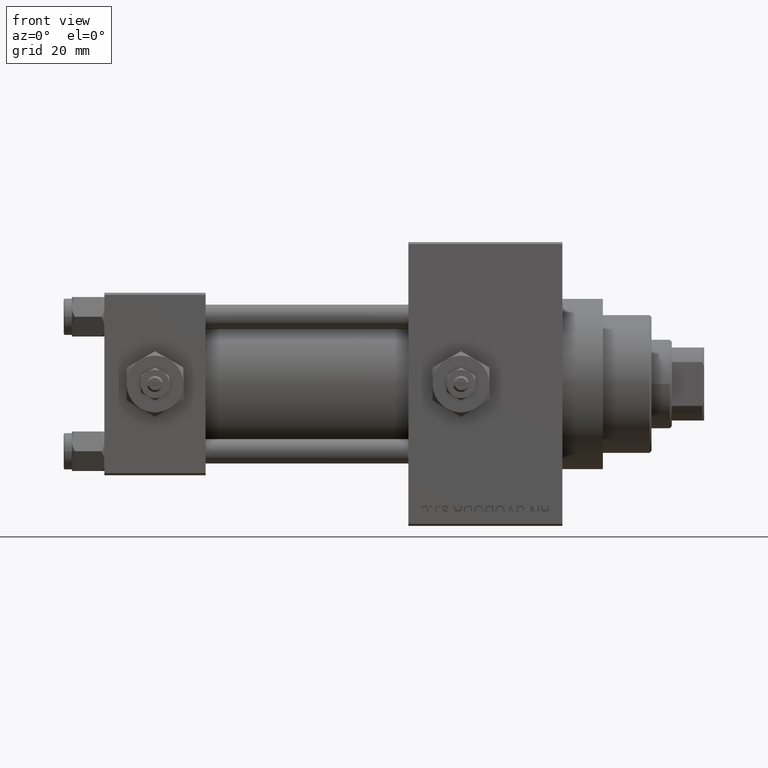
[diagram: clean part render]
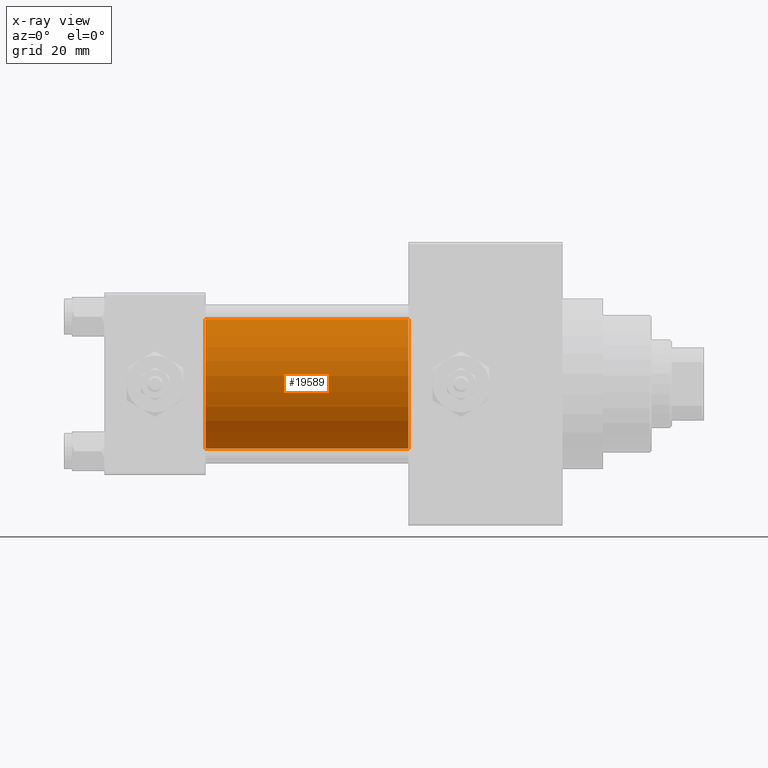
[diagram: x-ray — body ghosted, one internal face saturated and labeled with its STEP entity id]
A machine part, front view, then the same camera in x-ray: the body is ghosted and one INTERNAL B-rep face — a face not visible from any outside direction — is saturated and labeled: STEP entity #19589.
In plain terms, the highlighted cylindrical surface (partial cylindrical patch) has radius 16 mm, axis along (-1, -0, -0).
Its self-contained STEP definition (entity closure, byte-faithful):
#159 = CYLINDRICAL_SURFACE ( 'NONE', #8124, 16.00000000000000000 ) ;
#217 = CARTESIAN_POINT ( 'NONE',  ( 75.00000000000001421, -2.602085213965210642E-15, 0.000000000000000000 ) ) ;
#3429 = ORIENTED_EDGE ( 'NONE', *, *, #27883, .F. ) ;
#4923 = DIRECTION ( 'NONE',  ( -1.000000000000000000, -0.000000000000000000, -0.000000000000000000 ) ) ;
#5959 = VECTOR ( 'NONE', #7781, 1000.000000000000000 ) ;
#6067 = CARTESIAN_POINT ( 'NONE',  ( 25.00000000000000000, -6.426503353294456087E-16, -16.00000000000000000 ) ) ;
#6715 = VERTEX_POINT ( 'NONE', #37287 ) ;
#6940 = DIRECTION ( 'NONE',  ( 0.000000000000000000, 0.000000000000000000, -1.000000000000000000 ) ) ;
#7781 = DIRECTION ( 'NONE',  ( -1.000000000000000000, -0.000000000000000000, -0.000000000000000000 ) ) ;
#8124 = AXIS2_PLACEMENT_3D ( 'NONE', #15331, #48613, #49098 ) ;
#11099 = CIRCLE ( 'NONE', #17446, 16.00000000000000000 ) ;
#11620 = CARTESIAN_POINT ( 'NONE',  ( 75.00000000000001421, -2.602085213965210642E-15, 16.00000000000000000 ) ) ;
#13549 = ORIENTED_EDGE ( 'NONE', *, *, #36165, .F. ) ;
#15331 = CARTESIAN_POINT ( 'NONE',  ( 75.00000000000001421, -2.602085213965210642E-15, 0.000000000000000000 ) ) ;
#15362 = LINE ( 'NONE', #11620, #26526 ) ;
#15727 = LINE ( 'NONE', #22180, #5959 ) ;
#17102 = AXIS2_PLACEMENT_3D ( 'NONE', #36968, #21577, #48154 ) ;
#17446 = AXIS2_PLACEMENT_3D ( 'NONE', #217, #26794, #6940 ) ;
#19589 = ADVANCED_FACE ( 'NONE', ( #33935 ), #159, .F. ) ;
#21577 = DIRECTION ( 'NONE',  ( 1.000000000000000000, 0.000000000000000000, 0.000000000000000000 ) ) ;
#22180 = CARTESIAN_POINT ( 'NONE',  ( 75.00000000000001421, -6.426503353294456087E-16, -16.00000000000000000 ) ) ;
#22627 = ORIENTED_EDGE ( 'NONE', *, *, #46511, .T. ) ;
#22659 = CIRCLE ( 'NONE', #17102, 16.00000000000000000 ) ;
#23548 = CARTESIAN_POINT ( 'NONE',  ( 75.00000000000001421, -2.602085213965210642E-15, 16.00000000000000000 ) ) ;
#25377 = VERTEX_POINT ( 'NONE', #23548 ) ;
#26526 = VECTOR ( 'NONE', #4923, 1000.000000000000000 ) ;
#26794 = DIRECTION ( 'NONE',  ( 1.000000000000000000, 0.000000000000000000, 0.000000000000000000 ) ) ;
#27685 = CARTESIAN_POINT ( 'NONE',  ( 25.00000000000000000, -2.602085213965210642E-15, 16.00000000000000000 ) ) ;
#27883 = EDGE_CURVE ( 'NONE', #25377, #32961, #15362, .T. ) ;
#31642 = EDGE_LOOP ( 'NONE', ( #22627, #45931, #13549, #3429 ) ) ;
#31840 = EDGE_CURVE ( 'NONE', #6715, #36613, #15727, .T. ) ;
#32961 = VERTEX_POINT ( 'NONE', #27685 ) ;
#33935 = FACE_OUTER_BOUND ( 'NONE', #31642, .T. ) ;
#36165 = EDGE_CURVE ( 'NONE', #32961, #36613, #22659, .T. ) ;
#36613 = VERTEX_POINT ( 'NONE', #6067 ) ;
#36968 = CARTESIAN_POINT ( 'NONE',  ( 25.00000000000000000, -2.602085213965210642E-15, 0.000000000000000000 ) ) ;
#37287 = CARTESIAN_POINT ( 'NONE',  ( 75.00000000000001421, -6.426503353294456087E-16, -16.00000000000000000 ) ) ;
#45931 = ORIENTED_EDGE ( 'NONE', *, *, #31840, .T. ) ;
#46511 = EDGE_CURVE ( 'NONE', #25377, #6715, #11099, .T. ) ;
#48154 = DIRECTION ( 'NONE',  ( 0.000000000000000000, 0.000000000000000000, -1.000000000000000000 ) ) ;
#48613 = DIRECTION ( 'NONE',  ( -1.000000000000000000, -0.000000000000000000, -0.000000000000000000 ) ) ;
#49098 = DIRECTION ( 'NONE',  ( 0.000000000000000000, 0.000000000000000000, 1.000000000000000000 ) ) ;